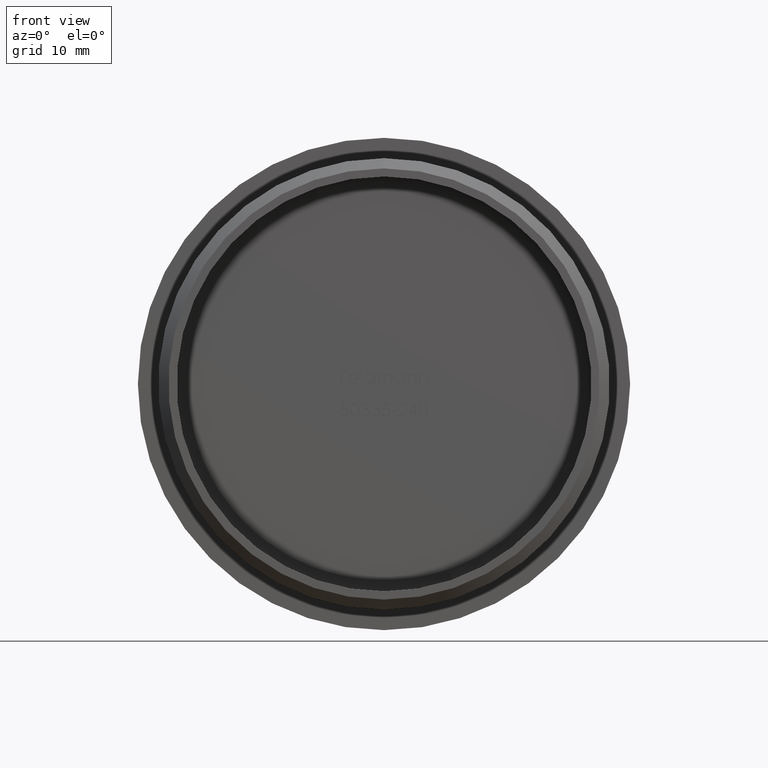
[diagram: clean part render]
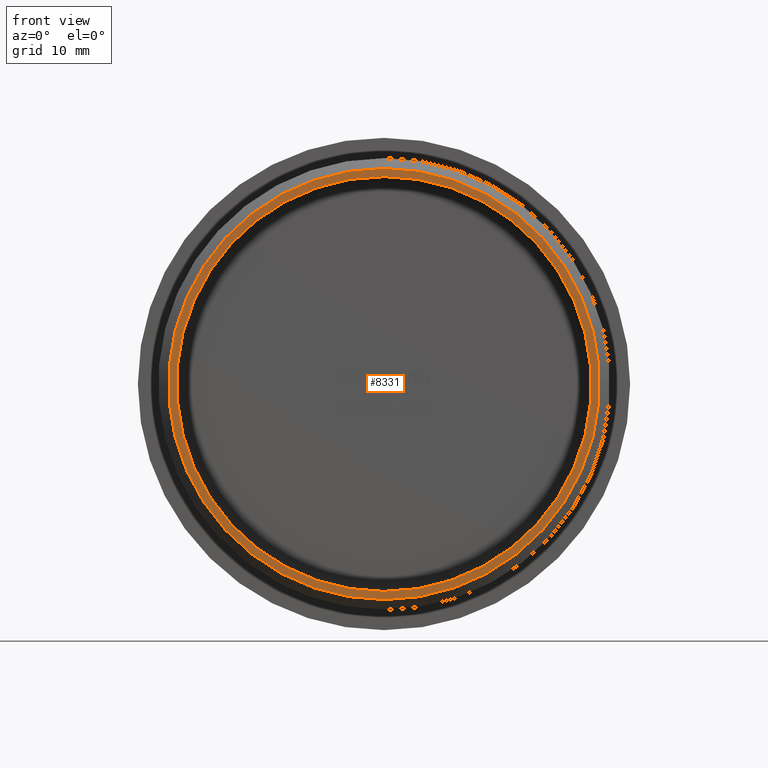
[diagram: same view with one face highlighted and labeled with its STEP entity id]
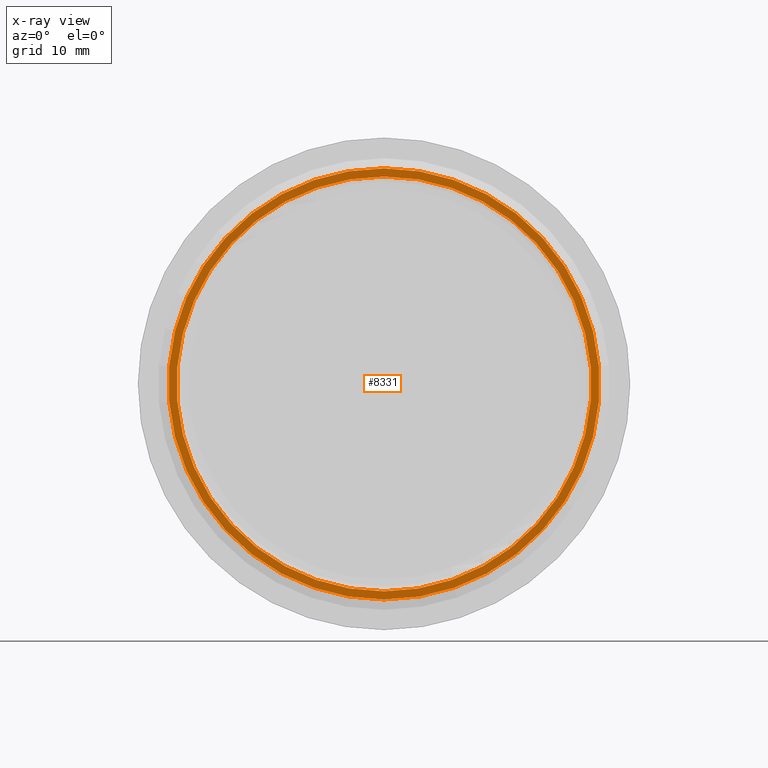
[diagram: x-ray of the same camera — body ghosted, the highlighted face saturated]
A machine part, front view. The second image highlights one B-rep face of the part: STEP entity #8331.
The next image is the same camera in x-ray: the body ghosted, the highlighted face saturated — about 0% of this face is hidden behind the body in this view.
In plain terms, the highlighted planar face has unit normal (0, -1, -0).
Its self-contained STEP definition (entity closure, byte-faithful):
#167 = AXIS2_PLACEMENT_3D ( 'NONE', #9403, #3945, #5006 ) ;
#551 = DIRECTION ( 'NONE',  ( -0.0000000000000000000, -1.000000000000000000, -0.0000000000000000000 ) ) ;
#619 = DIRECTION ( 'NONE',  ( -0.0000000000000000000, -1.000000000000000000, -0.0000000000000000000 ) ) ;
#1295 = VERTEX_POINT ( 'NONE', #10830 ) ;
#1356 = DIRECTION ( 'NONE',  ( -0.0000000000000000000, -1.000000000000000000, -0.0000000000000000000 ) ) ;
#1526 = ORIENTED_EDGE ( 'NONE', *, *, #3074, .T. ) ;
#1611 = CIRCLE ( 'NONE', #14013, 20.35000000000000500 ) ;
#1655 = VERTEX_POINT ( 'NONE', #3413 ) ;
#2040 = ORIENTED_EDGE ( 'NONE', *, *, #3259, .F. ) ;
#2177 = PLANE ( 'NONE',  #6726 ) ;
#2730 = EDGE_CURVE ( 'NONE', #11555, #1295, #6091, .T. ) ;
#3074 = EDGE_CURVE ( 'NONE', #1295, #11555, #7042, .T. ) ;
#3259 = EDGE_CURVE ( 'NONE', #6507, #1655, #12564, .T. ) ;
#3270 = CARTESIAN_POINT ( 'NONE',  ( 22.15000000000000200, 3.720337340842005500E-016, 0.0000000000000000000 ) ) ;
#3350 = AXIS2_PLACEMENT_3D ( 'NONE', #5887, #551, #4880 ) ;
#3351 = DIRECTION ( 'NONE',  ( 0.0000000000000000000, 0.0000000000000000000, -1.000000000000000000 ) ) ;
#3413 = CARTESIAN_POINT ( 'NONE',  ( 0.0000000000000000000, 0.0000000000000000000, -20.35000000000000500 ) ) ;
#3945 = DIRECTION ( 'NONE',  ( -0.0000000000000000000, -1.000000000000000000, -0.0000000000000000000 ) ) ;
#4880 = DIRECTION ( 'NONE',  ( 0.0000000000000000000, 0.0000000000000000000, -1.000000000000000000 ) ) ;
#5006 = DIRECTION ( 'NONE',  ( 0.0000000000000000000, 0.0000000000000000000, -1.000000000000000000 ) ) ;
#5609 = DIRECTION ( 'NONE',  ( 0.0000000000000000000, 0.0000000000000000000, -1.000000000000000000 ) ) ;
#5632 = CARTESIAN_POINT ( 'NONE',  ( 0.0000000000000000000, 3.720337340842005500E-016, 21.15000000000001600 ) ) ;
#5887 = CARTESIAN_POINT ( 'NONE',  ( 0.0000000000000000000, 3.720337340842005500E-016, 0.0000000000000000000 ) ) ;
#6091 = CIRCLE ( 'NONE', #3350, 21.15000000000001600 ) ;
#6507 = VERTEX_POINT ( 'NONE', #11677 ) ;
#6697 = CARTESIAN_POINT ( 'NONE',  ( 0.0000000000000000000, 3.720337340842005500E-016, 0.0000000000000000000 ) ) ;
#6726 = AXIS2_PLACEMENT_3D ( 'NONE', #3270, #7844, #5609 ) ;
#6761 = ORIENTED_EDGE ( 'NONE', *, *, #9145, .F. ) ;
#7042 = CIRCLE ( 'NONE', #10259, 21.15000000000001600 ) ;
#7597 = EDGE_LOOP ( 'NONE', ( #13648, #1526 ) ) ;
#7844 = DIRECTION ( 'NONE',  ( 0.0000000000000000000, -1.000000000000000000, -0.0000000000000000000 ) ) ;
#8331 = ADVANCED_FACE ( 'NONE', ( #14130, #9158 ), #2177, .T. ) ;
#9145 = EDGE_CURVE ( 'NONE', #1655, #6507, #1611, .T. ) ;
#9158 = FACE_BOUND ( 'NONE', #12330, .T. ) ;
#9403 = CARTESIAN_POINT ( 'NONE',  ( 0.0000000000000000000, 0.0000000000000000000, 0.0000000000000000000 ) ) ;
#10259 = AXIS2_PLACEMENT_3D ( 'NONE', #6697, #1356, #3351 ) ;
#10394 = DIRECTION ( 'NONE',  ( 0.0000000000000000000, 0.0000000000000000000, -1.000000000000000000 ) ) ;
#10444 = CARTESIAN_POINT ( 'NONE',  ( 0.0000000000000000000, 0.0000000000000000000, 0.0000000000000000000 ) ) ;
#10830 = CARTESIAN_POINT ( 'NONE',  ( 2.651360320154020500E-015, 3.720337340842005500E-016, -21.15000000000001600 ) ) ;
#11555 = VERTEX_POINT ( 'NONE', #5632 ) ;
#11677 = CARTESIAN_POINT ( 'NONE',  ( 2.492156236264864100E-015, 0.0000000000000000000, 20.35000000000000500 ) ) ;
#12330 = EDGE_LOOP ( 'NONE', ( #6761, #2040 ) ) ;
#12564 = CIRCLE ( 'NONE', #167, 20.35000000000000500 ) ;
#13648 = ORIENTED_EDGE ( 'NONE', *, *, #2730, .T. ) ;
#14013 = AXIS2_PLACEMENT_3D ( 'NONE', #10444, #619, #10394 ) ;
#14130 = FACE_OUTER_BOUND ( 'NONE', #7597, .T. ) ;